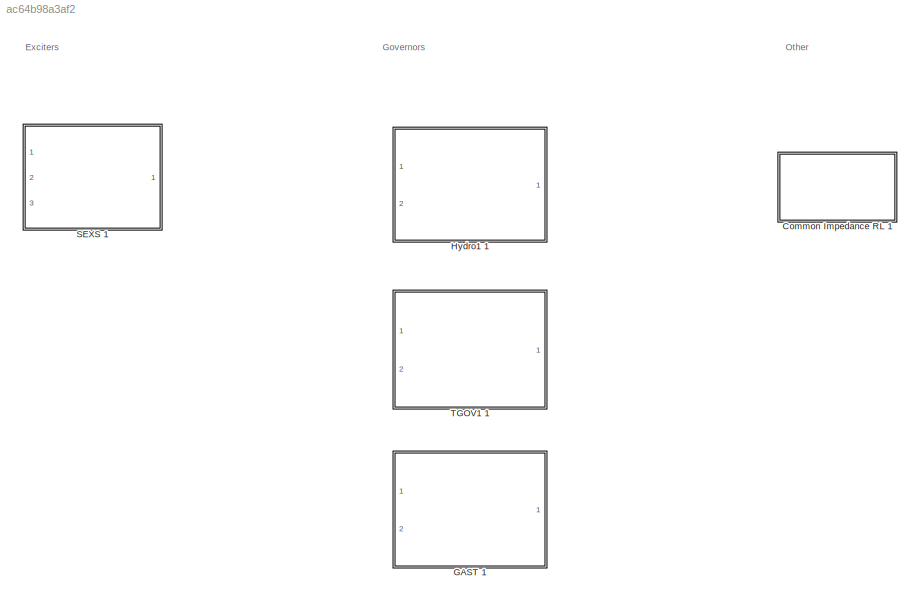
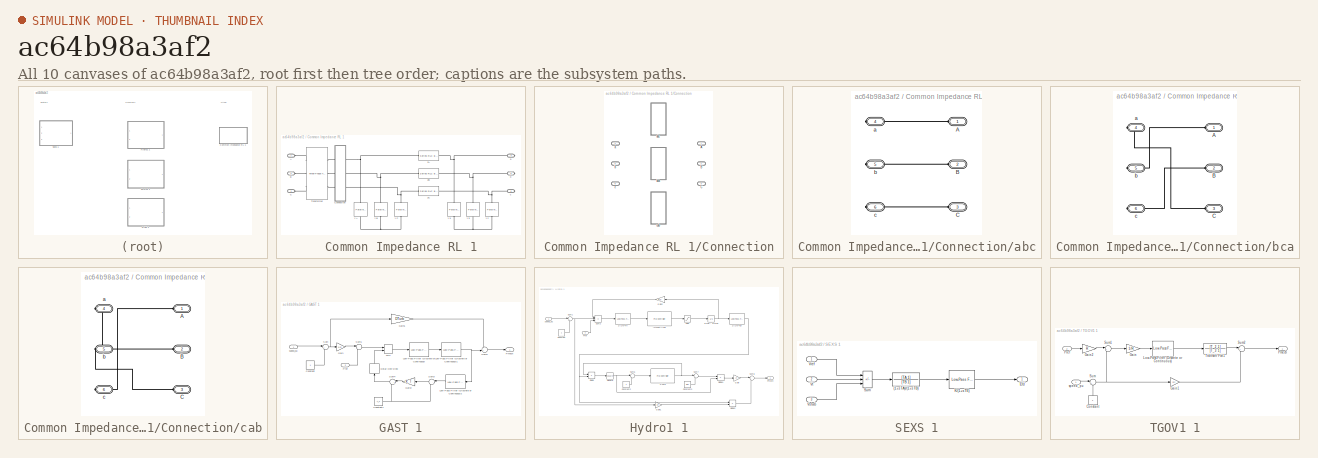
[diagram: thumbnail index - all 10 canvases of the model, root first then tree order]
MODEL slx_ac64b98a3af2
KIND library
CONFIG AbsTol = auto
CONFIG EnableMultiTasking = off
CONFIG FixedStep = auto
CONFIG MaxStep = auto
CONFIG MinStep = auto
CONFIG RelTol = 1e-3
CONFIG SampleTimeConstraint = Unconstrained
CONFIG SolverName = VariableStepAuto
CONFIG StartTime = 0.0
CONFIG StopTime = 10.0
BLOCK [SubSystem] Common Impedance RL 1
  AncestorBlock = customLib/Common Impedance 1
  Ports = [0, 0, 0, 0, 0, 3, 3]
  RequestExecContextInheritance = off
BLOCK [PMIOPort] Common Impedance RL 1/A
  Side = Left
BLOCK [PMIOPort] Common Impedance RL 1/B
  Port = 2
  Side = Left
BLOCK [PMIOPort] Common Impedance RL 1/C
  Port = 3
  Side = Left
BLOCK [SubSystem] Common Impedance RL 1/Connection
  LabelModeActiveChoice = abc
  Ports = [0, 0, 0, 0, 0, 3, 3]
  RequestExecContextInheritance = off
  Variant = on
  VariantControlMode = label
BLOCK [PMIOPort] Common Impedance RL 1/Connection/A
  Side = Left
BLOCK [PMIOPort] Common Impedance RL 1/Connection/B
  Port = 2
  Side = Left
BLOCK [PMIOPort] Common Impedance RL 1/Connection/C
  Port = 3
  Side = Left
BLOCK [PMIOPort] Common Impedance RL 1/Connection/a
  Port = 4
  Side = Right
BLOCK [SubSystem] Common Impedance RL 1/Connection/abc
  Ports = [0, 0, 0, 0, 0, 3, 3]
  RequestExecContextInheritance = off
  VariantControl = abc
BLOCK [PMIOPort] Common Impedance RL 1/Connection/abc/A
  Side = Left
BLOCK [PMIOPort] Common Impedance RL 1/Connection/abc/B
  Port = 2
  Side = Left
BLOCK [PMIOPort] Common Impedance RL 1/Connection/abc/C
  Port = 3
  Side = Left
BLOCK [PMIOPort] Common Impedance RL 1/Connection/abc/a
  Port = 4
  Side = Right
BLOCK [PMIOPort] Common Impedance RL 1/Connection/abc/b
  Port = 5
  Side = Right
BLOCK [PMIOPort] Common Impedance RL 1/Connection/abc/c
  Port = 6
  Side = Right
BLOCK [PMIOPort] Common Impedance RL 1/Connection/b
  Port = 5
  Side = Right
BLOCK [SubSystem] Common Impedance RL 1/Connection/bca
  AncestorBlock = customLib/Common Impedance RL 1/Variant Subsystem/abc
  Ports = [0, 0, 0, 0, 0, 3, 3]
  RequestExecContextInheritance = off
  VariantControl = bca
BLOCK [PMIOPort] Common Impedance RL 1/Connection/bca/A
  Side = Left
BLOCK [PMIOPort] Common Impedance RL 1/Connection/bca/B
  Port = 2
  Side = Left
BLOCK [PMIOPort] Common Impedance RL 1/Connection/bca/C
  Port = 3
  Side = Left
BLOCK [PMIOPort] Common Impedance RL 1/Connection/bca/a
  Port = 4
  Side = Right
BLOCK [PMIOPort] Common Impedance RL 1/Connection/bca/b
  Port = 5
  Side = Right
BLOCK [PMIOPort] Common Impedance RL 1/Connection/bca/c
  Port = 6
  Side = Right
BLOCK [PMIOPort] Common Impedance RL 1/Connection/c
  Port = 6
  Side = Right
BLOCK [SubSystem] Common Impedance RL 1/Connection/cab
  AncestorBlock = customLib/Common Impedance RL 1/Variant Subsystem/abc
  Ports = [0, 0, 0, 0, 0, 3, 3]
  RequestExecContextInheritance = off
  VariantControl = cab
BLOCK [PMIOPort] Common Impedance RL 1/Connection/cab/A
  Side = Left
BLOCK [PMIOPort] Common Impedance RL 1/Connection/cab/B
  Port = 2
  Side = Left
BLOCK [PMIOPort] Common Impedance RL 1/Connection/cab/C
  Port = 3
  Side = Left
BLOCK [PMIOPort] Common Impedance RL 1/Connection/cab/a
  Port = 4
  Side = Right
BLOCK [PMIOPort] Common Impedance RL 1/Connection/cab/b
  Port = 5
  Side = Right
BLOCK [PMIOPort] Common Impedance RL 1/Connection/cab/c
  Port = 6
  Side = Right
BLOCK [Reference] Common Impedance RL 1/Transformer  REF=spsThreePhaseTransformerTwoWindingsLib/Three-Phase
Transformer
(Two Windings)
  Ports = [0, 0, 0, 0, 0, 3, 3]
  SourceBlock = spsThreePhaseTransformerTwoWindingsLib/Three-Phase\nTransformer\n(Two Windings)
  SourceProductBaseCode = PS
  SourceType = Three-Phase Transformer (Two Windings)
BLOCK [Reference] Common Impedance RL 1/YA  REF=spsParallelRLCBranchLib/Parallel RLC Branch
  AttributesFormatString = \n
  NameLocation = left
  Ports = [0, 0, 0, 0, 0, 1, 1]
  SourceBlock = spsParallelRLCBranchLib/Parallel RLC Branch
  SourceProductBaseCode = PS
  SourceType = Parallel RLC Branch
BLOCK [Reference] Common Impedance RL 1/YB  REF=spsParallelRLCBranchLib/Parallel RLC Branch
  AttributesFormatString = \n
  NameLocation = left
  Ports = [0, 0, 0, 0, 0, 1, 1]
  SourceBlock = spsParallelRLCBranchLib/Parallel RLC Branch
  SourceProductBaseCode = PS
  SourceType = Parallel RLC Branch
BLOCK [Reference] Common Impedance RL 1/YC  REF=spsParallelRLCBranchLib/Parallel RLC Branch
  AttributesFormatString = \n
  NameLocation = left
  Ports = [0, 0, 0, 0, 0, 1, 1]
  SourceBlock = spsParallelRLCBranchLib/Parallel RLC Branch
  SourceProductBaseCode = PS
  SourceType = Parallel RLC Branch
BLOCK [Reference] Common Impedance RL 1/Ya  REF=spsParallelRLCBranchLib/Parallel RLC Branch
  AttributesFormatString = \n
  NameLocation = left
  Ports = [0, 0, 0, 0, 0, 1, 1]
  SourceBlock = spsParallelRLCBranchLib/Parallel RLC Branch
  SourceProductBaseCode = PS
  SourceType = Parallel RLC Branch
BLOCK [Reference] Common Impedance RL 1/Yb  REF=spsParallelRLCBranchLib/Parallel RLC Branch
  AttributesFormatString = \n
  NameLocation = left
  Ports = [0, 0, 0, 0, 0, 1, 1]
  SourceBlock = spsParallelRLCBranchLib/Parallel RLC Branch
  SourceProductBaseCode = PS
  SourceType = Parallel RLC Branch
BLOCK [Reference] Common Impedance RL 1/Yc  REF=spsParallelRLCBranchLib/Parallel RLC Branch
  AttributesFormatString = \n
  NameLocation = left
  Ports = [0, 0, 0, 0, 0, 1, 1]
  SourceBlock = spsParallelRLCBranchLib/Parallel RLC Branch
  SourceProductBaseCode = PS
  SourceType = Parallel RLC Branch
BLOCK [Reference] Common Impedance RL 1/ZA  REF=spsSeriesRLCBranchLib/Series RLC Branch
  Ports = [0, 0, 0, 0, 0, 1, 1]
  SourceBlock = spsSeriesRLCBranchLib/Series RLC Branch
  SourceProductBaseCode = PS
  SourceType = Series RLC Branch
BLOCK [Reference] Common Impedance RL 1/ZB  REF=spsSeriesRLCBranchLib/Series RLC Branch
  Ports = [0, 0, 0, 0, 0, 1, 1]
  SourceBlock = spsSeriesRLCBranchLib/Series RLC Branch
  SourceProductBaseCode = PS
  SourceType = Series RLC Branch
BLOCK [Reference] Common Impedance RL 1/ZC  REF=spsSeriesRLCBranchLib/Series RLC Branch
  Ports = [0, 0, 0, 0, 0, 1, 1]
  SourceBlock = spsSeriesRLCBranchLib/Series RLC Branch
  SourceProductBaseCode = PS
  SourceType = Series RLC Branch
BLOCK [PMIOPort] Common Impedance RL 1/a
  Port = 4
  Side = Right
BLOCK [PMIOPort] Common Impedance RL 1/b
  Port = 5
  Side = Right
BLOCK [PMIOPort] Common Impedance RL 1/c
  Port = 6
  Side = Right
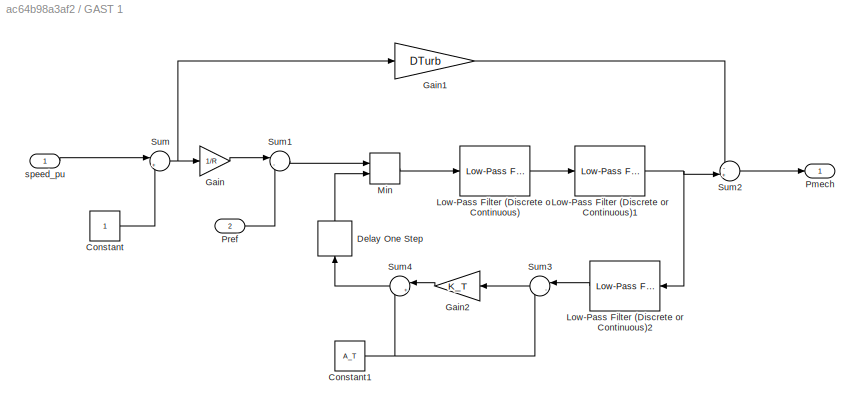
BLOCK [SubSystem] GAST 1
  Ports = [2, 1]
  RequestExecContextInheritance = off
BLOCK [Constant] GAST 1/Constant
BLOCK [Constant] GAST 1/Constant1
  Value = A_T
BLOCK [Delay] GAST 1/Delay One Step
  DelayLength = 1
  InputPortMap = u0
  NameLocation = right
  Ports = [1, 1]
BLOCK [Gain] GAST 1/Gain
  Gain = 1/R
BLOCK [Gain] GAST 1/Gain1
  Gain = DTurb
BLOCK [Gain] GAST 1/Gain2
  Gain = K_T
BLOCK [Reference] GAST 1/Low-Pass Filter (Discrete or Continuous)  REF=eeGeneralControl/Low-Pass Filter
(Discrete or Continuous)
  Ports = [1, 1]
  SourceBlock = eeGeneralControl/Low-Pass Filter\n(Discrete or Continuous)
  SourceProductBaseCode = PS
  SourceType = Low-Pass Filter (Discrete or Continuous)
BLOCK [Reference] GAST 1/Low-Pass Filter (Discrete or Continuous)1  REF=eeGeneralControl/Low-Pass Filter
(Discrete or Continuous)
  Ports = [1, 1]
  SourceBlock = eeGeneralControl/Low-Pass Filter\n(Discrete or Continuous)
  SourceProductBaseCode = PS
  SourceType = Low-Pass Filter (Discrete or Continuous)
BLOCK [Reference] GAST 1/Low-Pass Filter (Discrete or Continuous)2  REF=eeGeneralControl/Low-Pass Filter
(Discrete or Continuous)
  Ports = [1, 1]
  SourceBlock = eeGeneralControl/Low-Pass Filter\n(Discrete or Continuous)
  SourceProductBaseCode = PS
  SourceType = Low-Pass Filter (Discrete or Continuous)
BLOCK [MinMax] GAST 1/Min
  Inputs = 2
  Ports = [2, 1]
BLOCK [Outport] GAST 1/Pmech
BLOCK [Inport] GAST 1/Pref
  Port = 2
BLOCK [Sum] GAST 1/Sum
  Inputs = |+-
  Ports = [2, 1]
BLOCK [Sum] GAST 1/Sum1
  Inputs = |-+
  Ports = [2, 1]
BLOCK [Sum] GAST 1/Sum2
  Inputs = -+|
  Ports = [2, 1]
BLOCK [Sum] GAST 1/Sum3
  Inputs = |-+
  Ports = [2, 1]
BLOCK [Sum] GAST 1/Sum4
  Inputs = |++
  Ports = [2, 1]
BLOCK [Inport] GAST 1/speed_pu
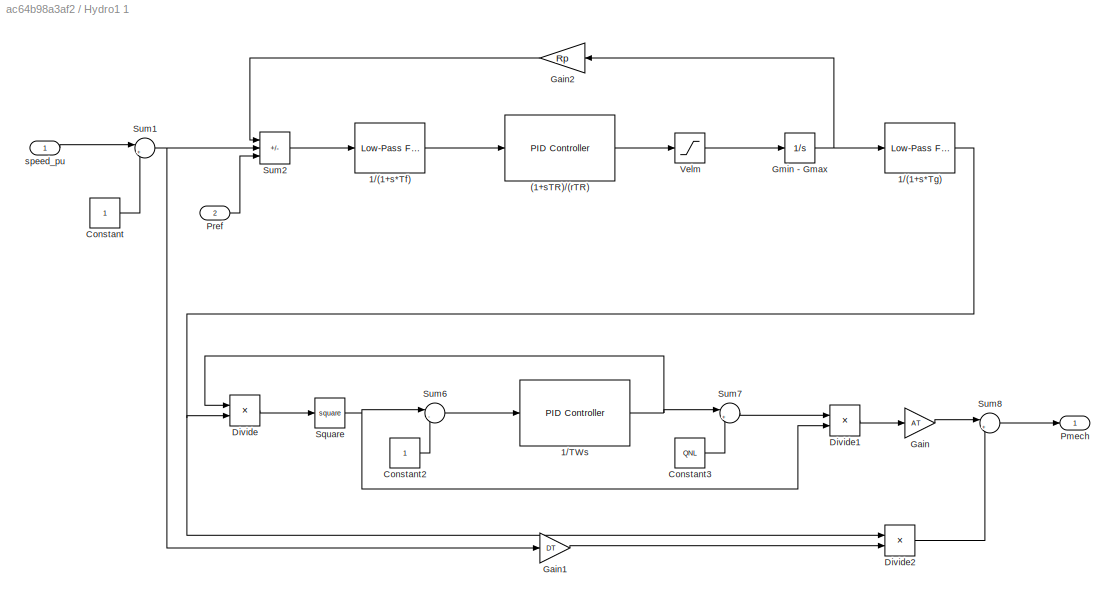
BLOCK [SubSystem] Hydro1 1
  Ports = [2, 1]
  RequestExecContextInheritance = off
BLOCK [Reference] Hydro1 1/(1+sTR)//(rTR)  REF=slpidlib/PID Controller
  Ports = [1, 1]
  SourceBlock = slpidlib/PID Controller
  SourceProductBaseCode = SL
  SourceType = PID 1dof
BLOCK [Reference] Hydro1 1/1//(1+s*Tf)  REF=eeGeneralControl/Low-Pass Filter
(Discrete or Continuous)
  Ports = [1, 1]
  SourceBlock = eeGeneralControl/Low-Pass Filter\n(Discrete or Continuous)
  SourceProductBaseCode = PS
  SourceType = Low-Pass Filter (Discrete or Continuous)
BLOCK [Reference] Hydro1 1/1//(1+s*Tg)  REF=eeGeneralControl/Low-Pass Filter
(Discrete or Continuous)
  Ports = [1, 1]
  SourceBlock = eeGeneralControl/Low-Pass Filter\n(Discrete or Continuous)
  SourceProductBaseCode = PS
  SourceType = Low-Pass Filter (Discrete or Continuous)
BLOCK [Reference] Hydro1 1/1//TWs  REF=slpidlib/PID Controller
  Ports = [1, 1]
  SourceBlock = slpidlib/PID Controller
  SourceProductBaseCode = SL
  SourceType = PID 1dof
BLOCK [Constant] Hydro1 1/Constant
BLOCK [Constant] Hydro1 1/Constant2
BLOCK [Constant] Hydro1 1/Constant3
  Value = QNL
BLOCK [Product] Hydro1 1/Divide
  Inputs = */
  Ports = [2, 1]
BLOCK [Product] Hydro1 1/Divide1
  Ports = [2, 1]
BLOCK [Product] Hydro1 1/Divide2
  Ports = [2, 1]
BLOCK [Gain] Hydro1 1/Gain
  Gain = AT
BLOCK [Gain] Hydro1 1/Gain1
  Gain = DT
BLOCK [Gain] Hydro1 1/Gain2
  Gain = Rp
BLOCK [Integrator] Hydro1 1/Gmin - Gmax
  LimitOutput = on
  LowerSaturationLimit = Gmin
  Ports = [1, 1]
  UpperSaturationLimit = Gmax
BLOCK [Outport] Hydro1 1/Pmech
BLOCK [Inport] Hydro1 1/Pref
  Port = 2
BLOCK [Math] Hydro1 1/Square
  Operator = square
  Ports = [1, 1]
BLOCK [Sum] Hydro1 1/Sum1
  Inputs = |+-
  Ports = [2, 1]
BLOCK [Sum] Hydro1 1/Sum2
  IconShape = rectangular
  Inputs = --+
  Ports = [3, 1]
BLOCK [Sum] Hydro1 1/Sum6
  Inputs = |-+
  Ports = [2, 1]
BLOCK [Sum] Hydro1 1/Sum7
  Inputs = |+-
  Ports = [2, 1]
BLOCK [Sum] Hydro1 1/Sum8
  Inputs = |+-
  Ports = [2, 1]
BLOCK [Saturate] Hydro1 1/Velm
  LowerLimit = -1 * Velm
  UpperLimit = Velm
BLOCK [Inport] Hydro1 1/speed_pu
BLOCK [SubSystem] SEXS 1
  Ports = [3, 1]
  RequestExecContextInheritance = off
BLOCK [TransferFcn] SEXS 1/(1+sTA)//(1+sTB)
  Denominator = [TB 1]
  Numerator = [TA 1]
BLOCK [Outport] SEXS 1/Efd
BLOCK [Reference] SEXS 1/K//(1+sTE)  REF=eeGeneralControl/Low-Pass Filter
(Discrete or Continuous)
  Ports = [1, 1]
  SourceBlock = eeGeneralControl/Low-Pass Filter\n(Discrete or Continuous)
  SourceProductBaseCode = PS
  SourceType = Low-Pass Filter (Discrete or Continuous)
BLOCK [Sum] SEXS 1/Sum
  IconShape = rectangular
  Inputs = +-+
  Ports = [3, 1]
BLOCK [Inport] SEXS 1/Vref
BLOCK [Inport] SEXS 1/Vstab
  Port = 3
BLOCK [Inport] SEXS 1/Vt
  Port = 2
BLOCK [SubSystem] TGOV1 1
  Ports = [2, 1]
  RequestExecContextInheritance = off
BLOCK [Constant] TGOV1 1/Constant
  NameLocation = right
BLOCK [Gain] TGOV1 1/Gain
  Gain = 1/R
BLOCK [Gain] TGOV1 1/Gain1
  Gain = Dt
BLOCK [Gain] TGOV1 1/Gain2
  Gain = R
BLOCK [Reference] TGOV1 1/Low-Pass Filter (Discrete or Continuous)  REF=eeGeneralControl/Low-Pass Filter
(Discrete or Continuous)
  Ports = [1, 1]
  SourceBlock = eeGeneralControl/Low-Pass Filter\n(Discrete or Continuous)
  SourceProductBaseCode = PS
  SourceType = Low-Pass Filter (Discrete or Continuous)
BLOCK [Outport] TGOV1 1/Pmech
BLOCK [Inport] TGOV1 1/Pref
  Port = 2
BLOCK [Sum] TGOV1 1/Sum
  Inputs = |+-
  NameLocation = top
  Ports = [2, 1]
BLOCK [Sum] TGOV1 1/Sum1
  Inputs = |+-
  Ports = [2, 1]
BLOCK [Sum] TGOV1 1/Sum2
  Inputs = |+-
  Ports = [2, 1]
BLOCK [TransferFcn] TGOV1 1/Transfer Fcn1
  Denominator = [T_3 1]
  Numerator = [T_2 1]
BLOCK [Inport] TGOV1 1/speed_pu
ANNOTATION (root): Governors
ANNOTATION (root): Exciters
ANNOTATION (root): Other
NET GAST 1/Constant1:1 -> GAST 1/Sum3:2, GAST 1/Sum4:2
LINE GAST 1/Constant:1 -> GAST 1/Sum:2
LINE GAST 1/Delay One Step:1 -> GAST 1/Min:2
LINE GAST 1/Gain1:1 -> GAST 1/Sum2:1
LINE GAST 1/Gain2:1 -> GAST 1/Sum4:1
LINE GAST 1/Gain:1 -> GAST 1/Sum1:1
NET GAST 1/Low-Pass Filter (Discrete or Continuous)1:1 -> GAST 1/Low-Pass Filter (Discrete or Continuous)2:1, GAST 1/Sum2:2
LINE GAST 1/Low-Pass Filter (Discrete or Continuous)2:1 -> GAST 1/Sum3:1
LINE GAST 1/Low-Pass Filter (Discrete or Continuous):1 -> GAST 1/Low-Pass Filter (Discrete or Continuous)1:1
LINE GAST 1/Min:1 -> GAST 1/Low-Pass Filter (Discrete or Continuous):1
LINE GAST 1/Pref:1 -> GAST 1/Sum1:2
LINE GAST 1/Sum1:1 -> GAST 1/Min:1
LINE GAST 1/Sum2:1 -> GAST 1/Pmech:1
LINE GAST 1/Sum3:1 -> GAST 1/Gain2:1
LINE GAST 1/Sum4:1 -> GAST 1/Delay One Step:1
NET GAST 1/Sum:1 -> GAST 1/Gain1:1, GAST 1/Gain:1
LINE GAST 1/speed_pu:1 -> GAST 1/Sum:1
LINE Hydro1 1/(1+sTR)//(rTR):1 -> Hydro1 1/Velm:1
LINE Hydro1 1/1//(1+s*Tf):1 -> Hydro1 1/(1+sTR)//(rTR):1
NET Hydro1 1/1//(1+s*Tg):1 -> Hydro1 1/Divide2:1, Hydro1 1/Divide:2
NET Hydro1 1/1//TWs:1 -> Hydro1 1/Divide:1, Hydro1 1/Sum7:1
LINE Hydro1 1/Constant2:1 -> Hydro1 1/Sum6:2
LINE Hydro1 1/Constant3:1 -> Hydro1 1/Sum7:2
LINE Hydro1 1/Constant:1 -> Hydro1 1/Sum1:2
LINE Hydro1 1/Divide1:1 -> Hydro1 1/Gain:1
LINE Hydro1 1/Divide2:1 -> Hydro1 1/Sum8:2
LINE Hydro1 1/Divide:1 -> Hydro1 1/Square:1
LINE Hydro1 1/Gain1:1 -> Hydro1 1/Divide2:2
LINE Hydro1 1/Gain2:1 -> Hydro1 1/Sum2:1
LINE Hydro1 1/Gain:1 -> Hydro1 1/Sum8:1
NET Hydro1 1/Gmin - Gmax:1 -> Hydro1 1/1//(1+s*Tg):1, Hydro1 1/Gain2:1
LINE Hydro1 1/Pref:1 -> Hydro1 1/Sum2:3
NET Hydro1 1/Square:1 -> Hydro1 1/Divide1:2, Hydro1 1/Sum6:1
NET Hydro1 1/Sum1:1 -> Hydro1 1/Gain1:1, Hydro1 1/Sum2:2
LINE Hydro1 1/Sum2:1 -> Hydro1 1/1//(1+s*Tf):1
LINE Hydro1 1/Sum6:1 -> Hydro1 1/1//TWs:1
LINE Hydro1 1/Sum7:1 -> Hydro1 1/Divide1:1
LINE Hydro1 1/Sum8:1 -> Hydro1 1/Pmech:1
LINE Hydro1 1/Velm:1 -> Hydro1 1/Gmin - Gmax:1
LINE Hydro1 1/speed_pu:1 -> Hydro1 1/Sum1:1
LINE SEXS 1/(1+sTA)//(1+sTB):1 -> SEXS 1/K//(1+sTE):1
LINE SEXS 1/K//(1+sTE):1 -> SEXS 1/Efd:1
LINE SEXS 1/Sum:1 -> SEXS 1/(1+sTA)//(1+sTB):1
LINE SEXS 1/Vref:1 -> SEXS 1/Sum:1
LINE SEXS 1/Vstab:1 -> SEXS 1/Sum:3
LINE SEXS 1/Vt:1 -> SEXS 1/Sum:2
note: NET lines group one-source signal fan-out (src -> all destinations, sorted); 1:1 wires keep LINE
